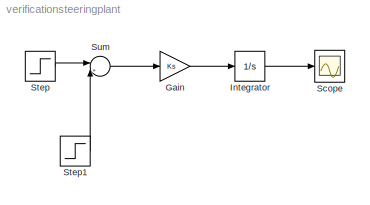
MODEL verificationsteeringplant
KIND model
BLOCK [Gain] Gain
  Gain = Ks
  OutDataTypeStr = Inherit: Inherit via internal rule
  ParamDataTypeStr = Inherit: Inherit via internal rule
  SID = 3
  SaturateOnIntegerOverflow = off
BLOCK [Integrator] Integrator
  Ports = [1, 1]
  SID = 2
BLOCK [Scope] Scope
  DataFormat = StructureWithTime
  Floating = off
  NumInputPorts = 1
  Ports = [1]
  SID = 5
  SampleTime = 0
  ShowLegends = off
BLOCK [Step] Step
  After = 1670
  Before = 1360
  SID = 6
  SampleTime = 0
  Time = 5
BLOCK [Step] Step1
  After = offset
  Before = 1360
  SID = 13
  SampleTime = 0
  Time = 5
BLOCK [Sum] Sum
  IconShape = round
  InputSameDT = off
  Inputs = |+-
  OutDataTypeStr = Inherit: Inherit via internal rule
  Ports = [2, 1]
  SID = 1
  SaturateOnIntegerOverflow = off
LINE Gain:1 -> Integrator:1
LINE Integrator:1 -> Scope:1
LINE Step1:1 -> Sum:2
LINE Step:1 -> Sum:1
LINE Sum:1 -> Gain:1
